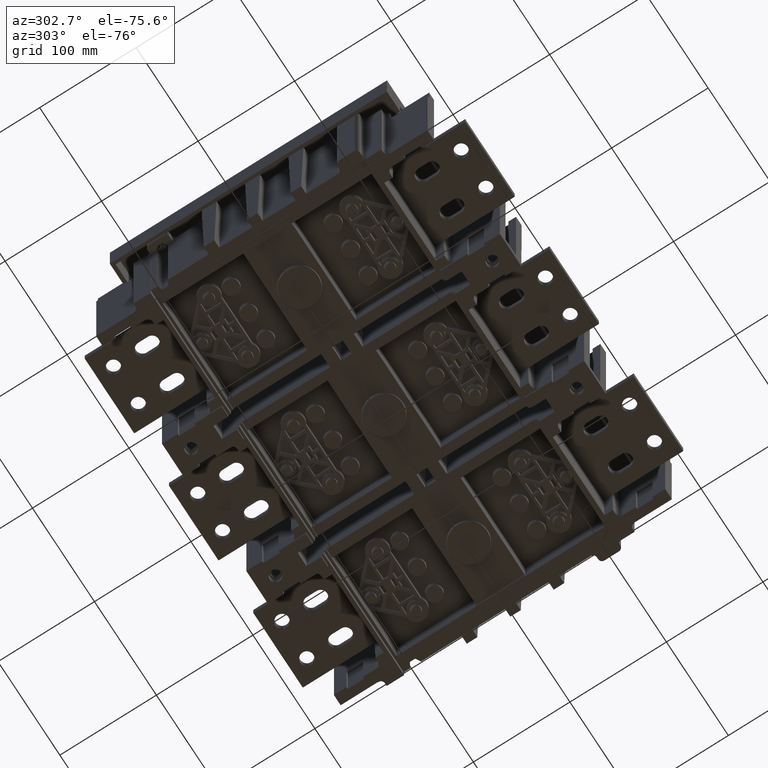
[diagram: clean part render]
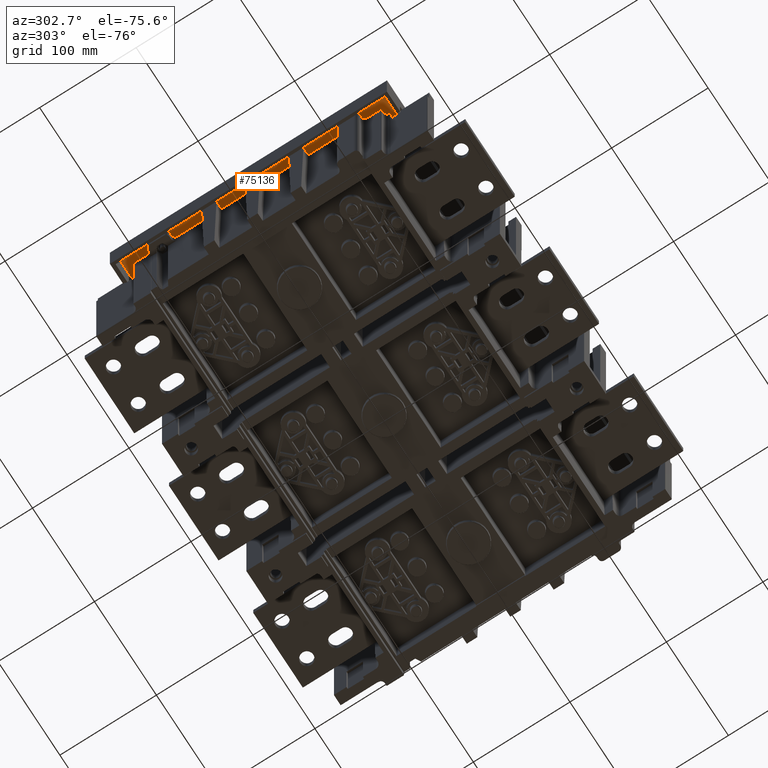
[diagram: same view with one face highlighted and labeled with its STEP entity id]
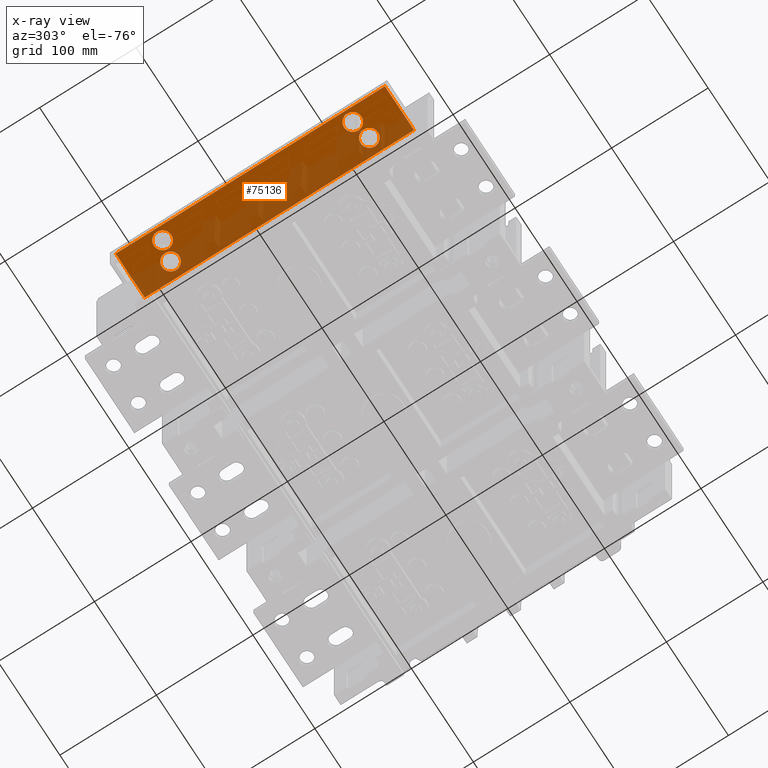
[diagram: x-ray of the same camera — body ghosted, the highlighted face saturated]
A machine part, auxiliary view. The second image highlights one B-rep face of the part: STEP entity #75136.
The next image is the same camera in x-ray: the body ghosted, the highlighted face saturated — about 48% of this face is hidden behind the body in this view.
In plain terms, the highlighted planar face has unit normal (0, 0, 1).
Its self-contained STEP definition (entity closure, byte-faithful):
#64461=DIRECTION('',(-1.E0,0.E0,0.E0));
#64462=VECTOR('',#64461,4.7E1);
#64463=CARTESIAN_POINT('',(-1.6885E2,1.395E2,3.7E1));
#64464=LINE('',#64463,#64462);
#64468=DIRECTION('',(0.E0,-1.E0,0.E0));
#64469=VECTOR('',#64468,2.79E2);
#64470=CARTESIAN_POINT('',(-2.1585E2,1.395E2,3.7E1));
#64471=LINE('',#64470,#64469);
#64475=DIRECTION('',(1.E0,0.E0,0.E0));
#64476=VECTOR('',#64475,4.7E1);
#64477=CARTESIAN_POINT('',(-2.1585E2,-1.395E2,3.7E1));
#64478=LINE('',#64477,#64476);
#64519=CARTESIAN_POINT('',(-1.84E2,1.03E2,3.7E1));
#64520=DIRECTION('',(0.E0,0.E0,1.E0));
#64521=DIRECTION('',(0.E0,1.E0,0.E0));
#64522=AXIS2_PLACEMENT_3D('',#64519,#64520,#64521);
#64527=CARTESIAN_POINT('',(-1.84E2,1.03E2,3.7E1));
#64528=DIRECTION('',(0.E0,0.E0,1.E0));
#64529=DIRECTION('',(0.E0,-1.E0,0.E0));
#64530=AXIS2_PLACEMENT_3D('',#64527,#64528,#64529);
#64535=CARTESIAN_POINT('',(-1.84E2,-1.03E2,3.7E1));
#64536=DIRECTION('',(0.E0,0.E0,1.E0));
#64537=DIRECTION('',(0.E0,1.E0,0.E0));
#64538=AXIS2_PLACEMENT_3D('',#64535,#64536,#64537);
#64543=CARTESIAN_POINT('',(-1.84E2,-1.03E2,3.7E1));
#64544=DIRECTION('',(0.E0,0.E0,1.E0));
#64545=DIRECTION('',(0.E0,-1.E0,0.E0));
#64546=AXIS2_PLACEMENT_3D('',#64543,#64544,#64545);
#64583=CARTESIAN_POINT('',(-2.0385E2,9.85E1,3.7E1));
#64584=DIRECTION('',(0.E0,0.E0,1.E0));
#64585=DIRECTION('',(0.E0,1.E0,0.E0));
#64586=AXIS2_PLACEMENT_3D('',#64583,#64584,#64585);
#64591=CARTESIAN_POINT('',(-2.0385E2,9.85E1,3.7E1));
#64592=DIRECTION('',(0.E0,0.E0,1.E0));
#64593=DIRECTION('',(0.E0,-1.E0,0.E0));
#64594=AXIS2_PLACEMENT_3D('',#64591,#64592,#64593);
#64599=CARTESIAN_POINT('',(-2.0385E2,-9.85E1,3.7E1));
#64600=DIRECTION('',(0.E0,0.E0,1.E0));
#64601=DIRECTION('',(0.E0,1.E0,0.E0));
#64602=AXIS2_PLACEMENT_3D('',#64599,#64600,#64601);
#64607=CARTESIAN_POINT('',(-2.0385E2,-9.85E1,3.7E1));
#64608=DIRECTION('',(0.E0,0.E0,1.E0));
#64609=DIRECTION('',(0.E0,-1.E0,0.E0));
#64610=AXIS2_PLACEMENT_3D('',#64607,#64608,#64609);
#64631=DIRECTION('',(0.E0,-1.E0,0.E0));
#64632=VECTOR('',#64631,2.79E2);
#64633=CARTESIAN_POINT('',(-1.6885E2,1.395E2,3.7E1));
#64634=LINE('',#64633,#64632);
#74278=CARTESIAN_POINT('',(-2.1585E2,1.395E2,3.7E1));
#74279=CARTESIAN_POINT('',(-2.1585E2,-1.395E2,3.7E1));
#74280=VERTEX_POINT('',#74278);
#74281=VERTEX_POINT('',#74279);
#74294=CARTESIAN_POINT('',(-1.6885E2,1.395E2,3.7E1));
#74295=CARTESIAN_POINT('',(-1.6885E2,-1.395E2,3.7E1));
#74296=VERTEX_POINT('',#74294);
#74297=VERTEX_POINT('',#74295);
#74394=CARTESIAN_POINT('',(-1.84E2,1.12E2,3.7E1));
#74395=VERTEX_POINT('',#74394);
#74396=CARTESIAN_POINT('',(-1.84E2,9.4E1,3.7E1));
#74397=VERTEX_POINT('',#74396);
#74402=CARTESIAN_POINT('',(-1.84E2,-9.4E1,3.7E1));
#74403=VERTEX_POINT('',#74402);
#74404=CARTESIAN_POINT('',(-1.84E2,-1.12E2,3.7E1));
#74405=VERTEX_POINT('',#74404);
#74618=CARTESIAN_POINT('',(-2.0385E2,1.075E2,3.7E1));
#74619=VERTEX_POINT('',#74618);
#74620=CARTESIAN_POINT('',(-2.0385E2,8.95E1,3.7E1));
#74621=VERTEX_POINT('',#74620);
#74626=CARTESIAN_POINT('',(-2.0385E2,-8.95E1,3.7E1));
#74627=VERTEX_POINT('',#74626);
#74628=CARTESIAN_POINT('',(-2.0385E2,-1.075E2,3.7E1));
#74629=VERTEX_POINT('',#74628);
#75100=CARTESIAN_POINT('',(0.E0,0.E0,3.7E1));
#75101=DIRECTION('',(0.E0,0.E0,1.E0));
#75102=DIRECTION('',(1.E0,0.E0,0.E0));
#75103=AXIS2_PLACEMENT_3D('',#75100,#75101,#75102);
#75104=PLANE('',#75103);
#75106=ORIENTED_EDGE('',*,*,#75105,.F.);
#75107=ORIENTED_EDGE('',*,*,#74998,.T.);
#75108=ORIENTED_EDGE('',*,*,#74868,.T.);
#75109=ORIENTED_EDGE('',*,*,#74971,.T.);
#75110=EDGE_LOOP('',(#75106,#75107,#75108,#75109));
#75111=FACE_OUTER_BOUND('',#75110,.F.);
#75113=ORIENTED_EDGE('',*,*,#75112,.F.);
#75115=ORIENTED_EDGE('',*,*,#75114,.F.);
#75116=EDGE_LOOP('',(#75113,#75115));
#75117=FACE_BOUND('',#75116,.F.);
#75119=ORIENTED_EDGE('',*,*,#75118,.F.);
#75121=ORIENTED_EDGE('',*,*,#75120,.F.);
#75122=EDGE_LOOP('',(#75119,#75121));
#75123=FACE_BOUND('',#75122,.F.);
#75125=ORIENTED_EDGE('',*,*,#75124,.F.);
#75127=ORIENTED_EDGE('',*,*,#75126,.F.);
#75128=EDGE_LOOP('',(#75125,#75127));
#75129=FACE_BOUND('',#75128,.F.);
#75131=ORIENTED_EDGE('',*,*,#75130,.F.);
#75133=ORIENTED_EDGE('',*,*,#75132,.F.);
#75134=EDGE_LOOP('',(#75131,#75133));
#75135=FACE_BOUND('',#75134,.F.);
#64523=CIRCLE('',#64522,9.E0);
#64531=CIRCLE('',#64530,9.E0);
#64539=CIRCLE('',#64538,9.E0);
#64547=CIRCLE('',#64546,9.E0);
#64587=CIRCLE('',#64586,9.E0);
#64595=CIRCLE('',#64594,9.E0);
#64603=CIRCLE('',#64602,9.E0);
#64611=CIRCLE('',#64610,9.E0);
#74868=EDGE_CURVE('',#74280,#74281,#64471,.T.);
#74971=EDGE_CURVE('',#74281,#74297,#64478,.T.);
#74998=EDGE_CURVE('',#74296,#74280,#64464,.T.);
#75105=EDGE_CURVE('',#74296,#74297,#64634,.T.);
#75112=EDGE_CURVE('',#74395,#74397,#64523,.T.);
#75114=EDGE_CURVE('',#74397,#74395,#64531,.T.);
#75118=EDGE_CURVE('',#74403,#74405,#64539,.T.);
#75120=EDGE_CURVE('',#74405,#74403,#64547,.T.);
#75124=EDGE_CURVE('',#74619,#74621,#64587,.T.);
#75126=EDGE_CURVE('',#74621,#74619,#64595,.T.);
#75130=EDGE_CURVE('',#74627,#74629,#64603,.T.);
#75132=EDGE_CURVE('',#74629,#74627,#64611,.T.);
#75136=ADVANCED_FACE('',(#75111,#75117,#75123,#75129,#75135),#75104,.F.);